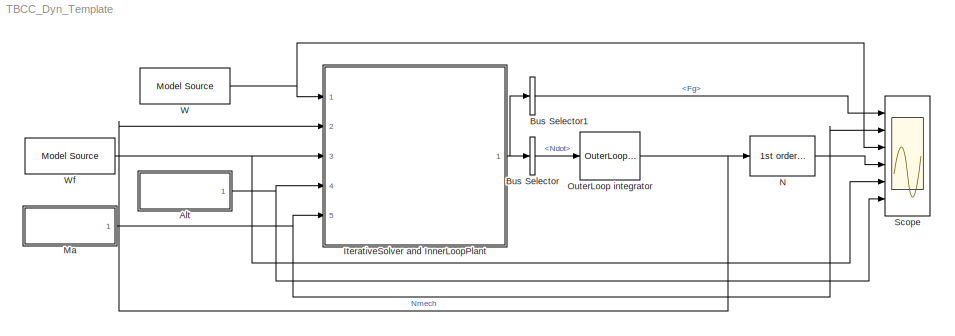
MODEL TBCC_Dyn_Template
KIND model
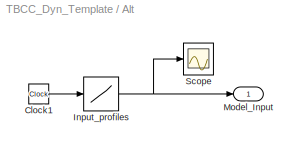
BLOCK [SubSystem] Alt
  AncestorBlock = Lib_Solve_ModelSource_TMATS/Model Source
  Ports = [0, 1]
  RequestExecContextInheritance = off
  SID = 604
BLOCK [Clock] Alt/Clock1
  Decimation = 100
  SID = 604:385
BLOCK [Lookup] Alt/Input_profiles
  InputValues = T_vec_M
  SID = 604:386
  SaturateOnIntegerOverflow = off
  Table = input_array_M
BLOCK [Outport] Alt/Model_Input
  IconDisplay = Port number
  SID = 604:387
BLOCK [Scope] Alt/Scope
  Floating = off
  NumInputPorts = 1
  Ports = [1]
  SID = 604:508
  ScopeSpecificationString = Simulink.scopes.TimeScopeBlockCfg('CurrentConfiguration', extmgr.ConfigurationSet(extmgr.Configuration('Core','General UI',true),extmgr.Configuration('Core','Source UI',true),extmgr.Configuration('Sources','WiredSimulink',true,'DataLoggingVariableName','ScopeData1'),extmgr.Configuration('Visuals','Time Domain',true,'SerializedDisplays',{struct('MinYLimReal','-3.745','MaxYLimReal','33.705','YLabelR...<+1394ch>
BLOCK [BusSelector] Bus Selector
  OutputAsBus = off
  OutputSignals = PlantBus.Ndot
  Ports = [1, 1]
  SID = 531
BLOCK [BusSelector] Bus Selector1
  OutputAsBus = off
  OutputSignals = PlantBus.Fg
  Ports = [1, 1]
  SID = 777
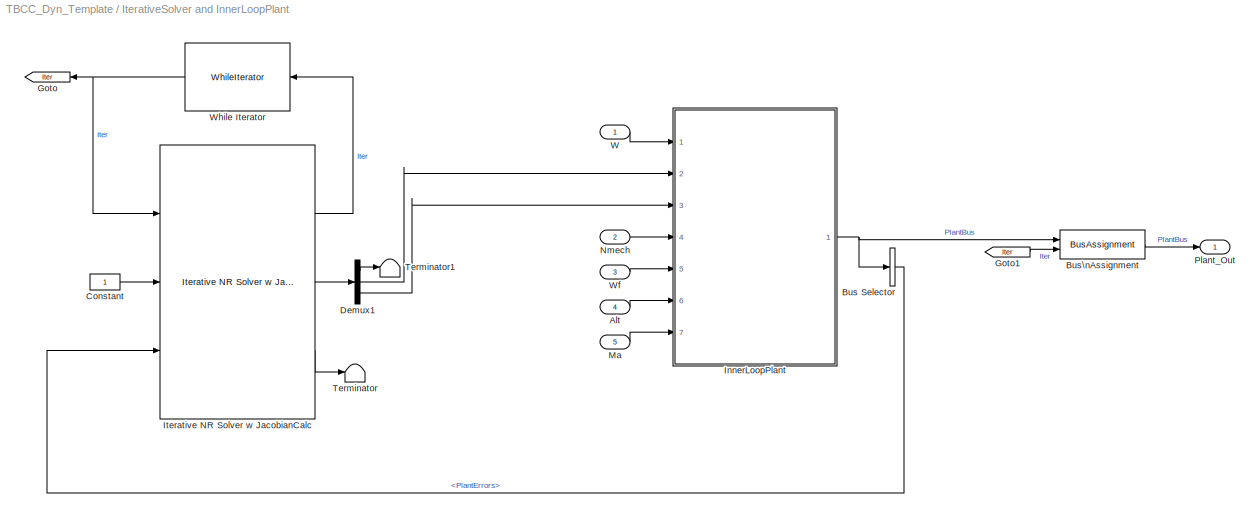
BLOCK [SubSystem] IterativeSolver and InnerLoopPlant
  Ports = [5, 1]
  RequestExecContextInheritance = off
  SID = 416
BLOCK [Inport] IterativeSolver and InnerLoopPlant/Alt
  IconDisplay = Port number
  Port = 4
  SID = 774
BLOCK [BusSelector] IterativeSolver and InnerLoopPlant/Bus Selector
  OutputAsBus = off
  OutputSignals = PlantErrors
  Ports = [1, 1]
  SID = 530
BLOCK [BusAssignment] IterativeSolver and InnerLoopPlant/Bus\nAssignment
  AssignedSignals = PlantBus.Iter
  Ports = [2, 1]
  SID = 751
BLOCK [Constant] IterativeSolver and InnerLoopPlant/Constant
  SID = 626
BLOCK [Demux] IterativeSolver and InnerLoopPlant/Demux1
  DisplayOption = bar
  Outputs = 3
  Ports = [1, 3]
  SID = 770
BLOCK [Goto] IterativeSolver and InnerLoopPlant/Goto
  GotoTag = Iter
  SID = 748
BLOCK [From] IterativeSolver and InnerLoopPlant/Goto1
  GotoTag = Iter
  SID = 750
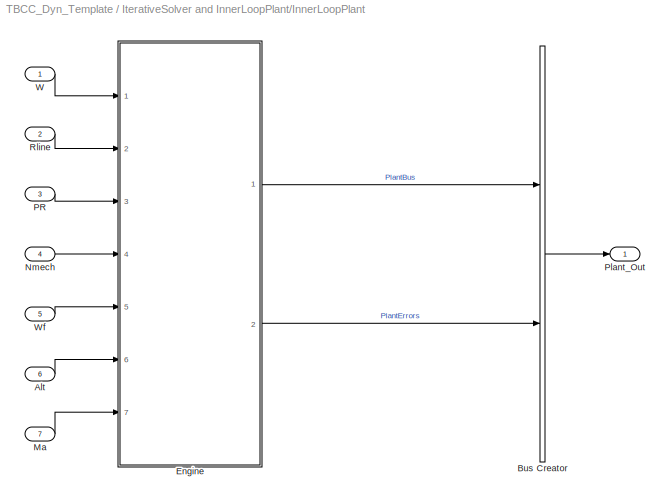
BLOCK [SubSystem] IterativeSolver and InnerLoopPlant/InnerLoopPlant
  Ports = [7, 1]
  RequestExecContextInheritance = off
  SID = 436
BLOCK [Inport] IterativeSolver and InnerLoopPlant/InnerLoopPlant/Alt
  IconDisplay = Port number
  Port = 6
  SID = 767
BLOCK [BusCreator] IterativeSolver and InnerLoopPlant/InnerLoopPlant/Bus Creator
  DisplayOption = bar
  InheritFromInputs = on
  Inputs = 2
  Ports = [2, 1]
  SID = 527
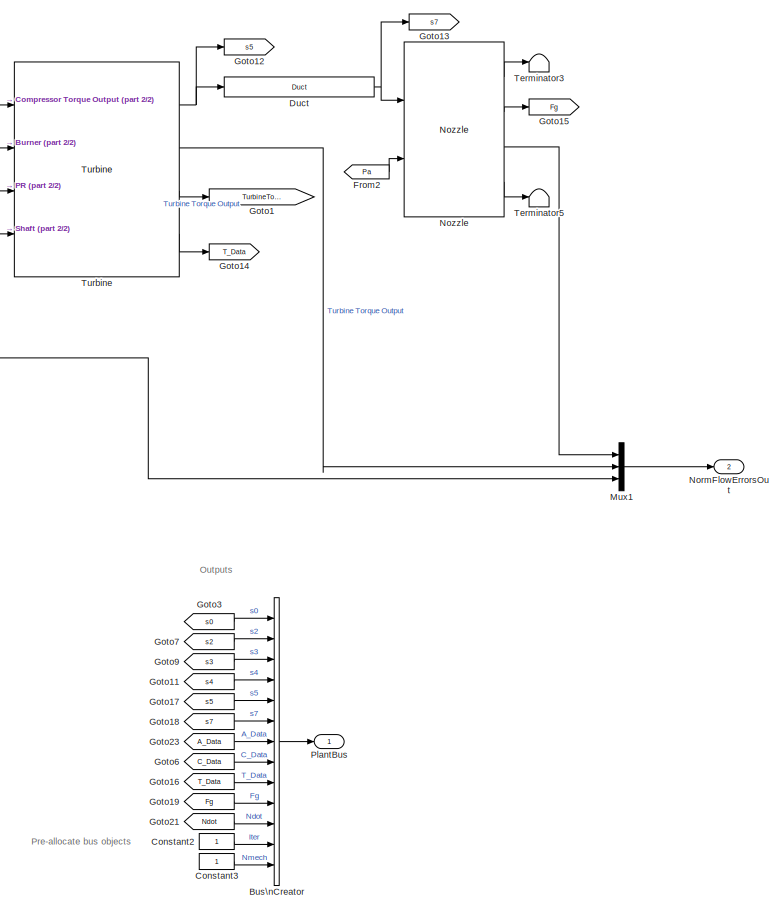
[diagram: IterativeSolver and InnerLoopPlant/InnerLoopPlant/Engine - part 1/2, right side, full height]
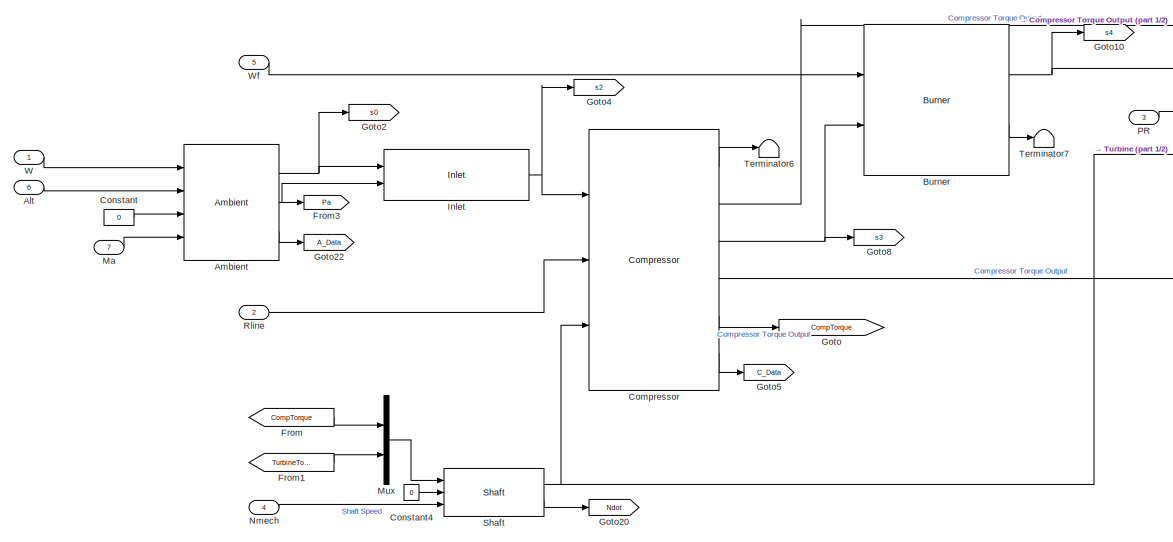
[diagram: IterativeSolver and InnerLoopPlant/InnerLoopPlant/Engine - part 2/2, middle left region]
BLOCK [SubSystem] IterativeSolver and InnerLoopPlant/InnerLoopPlant/Engine
  Ports = [7, 2]
  RequestExecContextInheritance = off
  SID = 629
BLOCK [Inport] IterativeSolver and InnerLoopPlant/InnerLoopPlant/Engine/Alt
  IconDisplay = Port number
  Port = 6
  SID = 635
BLOCK [Reference] IterativeSolver and InnerLoopPlant/InnerLoopPlant/Engine/Ambient  REF=Lib_Turbo_Ambient_TMATS/Ambient
  AFARc_M = 0
  Ports = [4, 3]
  SID = 636
  SourceBlock = Lib_Turbo_Ambient_TMATS/Ambient
  SourceType = T-MATS: Ambient Library Block
  T_A_PsVec_M = [17.554 14.696 12.228 10.108 8.297 6.759 5.461 4.373 3.468 2.73 2.149 1.692 1.049 0.651 0.406]
  T_A_RtArray_M = [0.0686;    0.0686;    0.0686;    0.0686;    0.0686;    0.0686;    0.0686]
  T_A_TsVec_M = [536.51 518.67 500.84 483.03 465.22 447.41 429.62 411.84 394.06 389.97 389.97 389.97 389.97 392.25 397.69]
  T_A_gammaArray_M = [ 1.4 1.4 1.4 1.4 1.4 1.4 1.4; 1.4 1.4 1.4 1.4 1.4 1.4 1.4]
  X_A_AltVec_M = 5000*[-1 0 1 2 3 4 5 6 7 8 9 10 12 14 16]
  X_A_FARVec_M = [0; 0.0050; 0.0100; 0.0150; 0.0200; 0.0250; 0.0300]
  Y_A_TVec_M = [300 10000]
BLOCK [Reference] IterativeSolver and InnerLoopPlant/InnerLoopPlant/Engine/Burner  REF=Lib_Turbo_Burner_TMATS/Burner
  Eff_M = 1
  LHVEn_M = on
  LHV_M = MWS.Burner.LHV
  Ports = [2, 2]
  SID = 637
  SourceBlock = Lib_Turbo_Burner_TMATS/Burner
  SourceType = T-MATS: Burner Library Block
  dPnormBurner_M = MWS.Burner.dP
  hFuel_M = -1200
BLOCK [BusCreator] IterativeSolver and InnerLoopPlant/InnerLoopPlant/Engine/Bus\nCreator
  DisplayOption = bar
  InheritFromInputs = on
  Inputs = 13
  Ports = [13, 1]
  SID = 702
BLOCK [Reference] IterativeSolver and InnerLoopPlant/InnerLoopPlant/Engine/Compressor  REF=Lib_Turbo_Compressor_TMATS/Compressor
  BlkNm_M = double(gcb)
  CBLDEN_M = off
  C_BFPt_M = 0.5
  C_BFht_M = 0.5
  C_CBD_M = 0
  C_CBFPt_M = 0.5
  C_CBFht_M = 0.5
  C_FBD_M = 0
  DefSMEn_M = off
  EffDes_M = 0.85
  FBLDEN_M = off
  FVar_M = strcat('iDes_',stripchar_TMATS(gcb),'.bin')
  HP_M = off
  NcDes_M = 10000
  PRDes_M = 20
  Ports = [3, 6]
  RlineDes_M = 2
  SID = 638
  SL_M = off
  SMNEn_M = off
  SRline_M = 1
  Scale_M = none
  SourceBlock = Lib_Turbo_Compressor_TMATS/Compressor
  SourceType = T-MATS: Compressor Library Block
  T_C_Map_EffArray_M = MWS.HPC.EffArray
  T_C_Map_PRArray_M = MWS.HPC.PRArray
  T_C_Map_PRSurgeVec_M = MWS.HPC.PRMapSurge
  T_C_Map_WcArray_M = MWS.HPC.WcArray
  X_C_Map_WcSurgeVec_M = MWS.HPC.WcMapSurge
  X_C_RlineVec_M = MWS.HPC.RlineVec
  Y_C_Map_NcVec_M = MWS.HPC.NcVec
  Z_C_AlphaVec_M = 1
  iDesign_M = 2
  s_C_Eff_M = MWS.HPC.s_eff
  s_C_Nc_M = MWS.HPC.s_Nc
  s_C_PR_M = MWS.HPC.s_PR
  s_C_Wc_M = MWS.HPC.s_Wc
BLOCK [Constant] IterativeSolver and InnerLoopPlant/InnerLoopPlant/Engine/Constant
  SID = 639
  Value = 0
BLOCK [Constant] IterativeSolver and InnerLoopPlant/InnerLoopPlant/Engine/Constant2
  OutDataTypeStr = int32
  SID = 756
BLOCK [Constant] IterativeSolver and InnerLoopPlant/InnerLoopPlant/Engine/Constant3
  SID = 757
BLOCK [Constant] IterativeSolver and InnerLoopPlant/InnerLoopPlant/Engine/Constant4
  SID = 761
  Value = 0
BLOCK [Reference] IterativeSolver and InnerLoopPlant/InnerLoopPlant/Engine/Duct  REF=Lib_Turbo_Duct_TMATS/Duct
  Ports = [1, 1]
  SID = 641
  SourceBlock = Lib_Turbo_Duct_TMATS/Duct
  SourceType = T-MATS: Duct Library Block
  dP_M = MWS.Duct.dP
BLOCK [From] IterativeSolver and InnerLoopPlant/InnerLoopPlant/Engine/From
  GotoTag = CompTorque
  SID = 642
BLOCK [From] IterativeSolver and InnerLoopPlant/InnerLoopPlant/Engine/From1
  GotoTag = TurbineTorque
  SID = 643
BLOCK [From] IterativeSolver and InnerLoopPlant/InnerLoopPlant/Engine/From2
  GotoTag = Pa
  SID = 644
BLOCK [Goto] IterativeSolver and InnerLoopPlant/InnerLoopPlant/Engine/From3
  GotoTag = Pa
  SID = 645
BLOCK [Goto] IterativeSolver and InnerLoopPlant/InnerLoopPlant/Engine/Goto
  GotoTag = CompTorque
  SID = 646
BLOCK [Goto] IterativeSolver and InnerLoopPlant/InnerLoopPlant/Engine/Goto1
  GotoTag = TurbineTorque
  SID = 647
BLOCK [Goto] IterativeSolver and InnerLoopPlant/InnerLoopPlant/Engine/Goto10
  GotoTag = s4
  SID = 682
BLOCK [From] IterativeSolver and InnerLoopPlant/InnerLoopPlant/Engine/Goto11
  GotoTag = s4
  SID = 696
BLOCK [Goto] IterativeSolver and InnerLoopPlant/InnerLoopPlant/Engine/Goto12
  GotoTag = s5
  SID = 684
BLOCK [Goto] IterativeSolver and InnerLoopPlant/InnerLoopPlant/Engine/Goto13
  GotoTag = s7
  SID = 685
BLOCK [Goto] IterativeSolver and InnerLoopPlant/InnerLoopPlant/Engine/Goto14
  GotoTag = T_Data
  SID = 686
BLOCK [Goto] IterativeSolver and InnerLoopPlant/InnerLoopPlant/Engine/Goto15
  GotoTag = Fg
  SID = 687
BLOCK [From] IterativeSolver and InnerLoopPlant/InnerLoopPlant/Engine/Goto16
  GotoTag = T_Data
  SID = 700
BLOCK [From] IterativeSolver and InnerLoopPlant/InnerLoopPlant/Engine/Goto17
  GotoTag = s5
  SID = 697
BLOCK [From] IterativeSolver and InnerLoopPlant/InnerLoopPlant/Engine/Goto18
  GotoTag = s7
  SID = 698
BLOCK [From] IterativeSolver and InnerLoopPlant/InnerLoopPlant/Engine/Goto19
  GotoTag = Fg
  SID = 701
BLOCK [Goto] IterativeSolver and InnerLoopPlant/InnerLoopPlant/Engine/Goto2
  GotoTag = s0
  SID = 673
BLOCK [Goto] IterativeSolver and InnerLoopPlant/InnerLoopPlant/Engine/Goto20
  GotoTag = Ndot
  SID = 704
BLOCK [From] IterativeSolver and InnerLoopPlant/InnerLoopPlant/Engine/Goto21
  GotoTag = Ndot
  SID = 706
BLOCK [Goto] IterativeSolver and InnerLoopPlant/InnerLoopPlant/Engine/Goto22
  GotoTag = A_Data
  SID = 716
BLOCK [From] IterativeSolver and InnerLoopPlant/InnerLoopPlant/Engine/Goto23
  GotoTag = A_Data
  SID = 718
BLOCK [From] IterativeSolver and InnerLoopPlant/InnerLoopPlant/Engine/Goto3
  GotoTag = s0
  SID = 693
BLOCK [Goto] IterativeSolver and InnerLoopPlant/InnerLoopPlant/Engine/Goto4
  GotoTag = s2
  SID = 676
BLOCK [Goto] IterativeSolver and InnerLoopPlant/InnerLoopPlant/Engine/Goto5
  GotoTag = C_Data
  SID = 677
BLOCK [From] IterativeSolver and InnerLoopPlant/InnerLoopPlant/Engine/Goto6
  GotoTag = C_Data
  SID = 699
BLOCK [From] IterativeSolver and InnerLoopPlant/InnerLoopPlant/Engine/Goto7
  GotoTag = s2
  SID = 694
BLOCK [Goto] IterativeSolver and InnerLoopPlant/InnerLoopPlant/Engine/Goto8
  GotoTag = s3
  SID = 680
BLOCK [From] IterativeSolver and InnerLoopPlant/InnerLoopPlant/Engine/Goto9
  GotoTag = s3
  SID = 695
BLOCK [Reference] IterativeSolver and InnerLoopPlant/InnerLoopPlant/Engine/Inlet  REF=Lib_Turbo_Inlet_TMATS/Inlet
  Ports = [2, 1]
  SID = 648
  SourceBlock = Lib_Turbo_Inlet_TMATS/Inlet
  SourceType = T-MATS: Inlet Library Block
  T_eRamtbl_M = [1 1]
  X_eRamVec_M = [0 3]
  eRambase_M = MWS.Inlet.eRambase
BLOCK [Inport] IterativeSolver and InnerLoopPlant/InnerLoopPlant/Engine/Ma
  IconDisplay = Port number
  Port = 7
  SID = 781
BLOCK [Mux] IterativeSolver and InnerLoopPlant/InnerLoopPlant/Engine/Mux
  DisplayOption = bar
  Inputs = 2
  Ports = [2, 1]
  SID = 649
BLOCK [Mux] IterativeSolver and InnerLoopPlant/InnerLoopPlant/Engine/Mux1
  DisplayOption = bar
  Inputs = 3
  Ports = [3, 1]
  SID = 650
BLOCK [Inport] IterativeSolver and InnerLoopPlant/InnerLoopPlant/Engine/Nmech
  IconDisplay = Port number
  Port = 4
  SID = 633
BLOCK [Outport] IterativeSolver and InnerLoopPlant/InnerLoopPlant/Engine/NormFlowErrorsOut
  IconDisplay = Port number
  Port = 2
  SID = 669
BLOCK [Reference] IterativeSolver and InnerLoopPlant/InnerLoopPlant/Engine/Nozzle  REF=Lib_Turbo_Nozzle_TMATS/Nozzle
  CfgEn_M = off
  FVar_M = strcat('iDes_',stripchar_TMATS(gcb),'.bin')
  N_EArea_M = 110.7
  N_FL_M = MWS.Noz.LossPerc
  N_TArea_M = MWS.Noz.ATh
  Ports = [2, 4]
  SID = 651
  SWType_M = Convergent
  SourceBlock = Lib_Turbo_Nozzle_TMATS/Nozzle
  SourceType = T-MATS: Nozzle Library Block
  T_N_CdThArray_M = MWS.Noz.CdThArray
  T_N_CfgArray_M = [1 1]
  T_N_CvArray_M = MWS.Noz.CvArray
  T_N_MAP_gammaArray_M = MWS.Noz.GArray
  T_N_RtArray_M = MWS.Noz.RArray
  T_N_TGArray_M = MWS.Noz.TGArray
  WDes_M = 100
  X_N_FARVec_M = MWS.Noz.FARVec
  X_N_PEQPaVec_M = MWS.Noz.PeQPaVec
  X_N_TtVec2_M = MWS.Noz.TtVec
  Y_N_TtVec_M = MWS.Noz.TtVec
  iDesign_M = 2
BLOCK [Inport] IterativeSolver and InnerLoopPlant/InnerLoopPlant/Engine/PR
  IconDisplay = Port number
  Port = 3
  SID = 632
BLOCK [Outport] IterativeSolver and InnerLoopPlant/InnerLoopPlant/Engine/PlantBus
  IconDisplay = Port number
  SID = 668
BLOCK [Inport] IterativeSolver and InnerLoopPlant/InnerLoopPlant/Engine/Rline
  IconDisplay = Port number
  Port = 2
  SID = 631
BLOCK [Reference] IterativeSolver and InnerLoopPlant/InnerLoopPlant/Engine/Shaft  REF=Lib_Turbo_Shaft_TMATS/Shaft
  Ports = [3, 2]
  SID = 652
  Shaft_Inertia_M = MWS.Shaft.N_I
  SourceBlock = Lib_Turbo_Shaft_TMATS/Shaft
  SourceType = T-MATS: Shaft Library Block
BLOCK [Terminator] IterativeSolver and InnerLoopPlant/InnerLoopPlant/Engine/Terminator3
  SID = 653
BLOCK [Terminator] IterativeSolver and InnerLoopPlant/InnerLoopPlant/Engine/Terminator5
  SID = 655
BLOCK [Terminator] IterativeSolver and InnerLoopPlant/InnerLoopPlant/Engine/Terminator6
  SID = 656
BLOCK [Terminator] IterativeSolver and InnerLoopPlant/InnerLoopPlant/Engine/Terminator7
  SID = 657
BLOCK [Reference] IterativeSolver and InnerLoopPlant/InnerLoopPlant/Engine/Turbine  REF=Lib_Turbo_Turbine_TMATS/Turbine
  BlkNm_M = double(gcb)
  CFlwEn_M = off
  ConfigNPSS_M = 0
  EffDes_M = 0.9200
  FVar_M = strcat('iDes_',stripchar_TMATS(gcb),'.bin')
  HP_M = off
  NDes_M = 10000
  NcDes_M = 100
  PRDes_M = 5
  Ports = [4, 4]
  SID = 667
  Scale_M = none
  SourceBlock = Lib_Turbo_Turbine_TMATS/Turbine
  SourceType = T-MATS: Turbine Library Block
  T_CoolFlwPos_M = 0
  T_T_Map_EffArray_M = MWS.HPT.EffArray
  T_T_Map_WcArray_M = MWS.HPT.WcArray
  X_T_Map_PRVec_M = MWS.HPT.PRVec
  Y_T_Map_NcVec_M = MWS.HPT.NcVec
  iDesign_M = 2
  s_T_Eff_M = MWS.HPT.s_eff
  s_T_Nc_M = MWS.HPT.s_Nc
  s_T_PR_M = MWS.HPT.s_PR
  s_T_Wc_M = MWS.HPT.s_Wc
BLOCK [Inport] IterativeSolver and InnerLoopPlant/InnerLoopPlant/Engine/W
  IconDisplay = Port number
  SID = 630
BLOCK [Inport] IterativeSolver and InnerLoopPlant/InnerLoopPlant/Engine/Wf
  IconDisplay = Port number
  Port = 5
  SID = 634
BLOCK [Inport] IterativeSolver and InnerLoopPlant/InnerLoopPlant/Ma
  IconDisplay = Port number
  Port = 7
  SID = 782
BLOCK [Inport] IterativeSolver and InnerLoopPlant/InnerLoopPlant/Nmech
  IconDisplay = Port number
  Port = 4
  SID = 765
BLOCK [Inport] IterativeSolver and InnerLoopPlant/InnerLoopPlant/PR
  IconDisplay = Port number
  Port = 3
  SID = 764
BLOCK [Outport] IterativeSolver and InnerLoopPlant/InnerLoopPlant/Plant_Out
  IconDisplay = Port number
  SID = 528
BLOCK [Inport] IterativeSolver and InnerLoopPlant/InnerLoopPlant/Rline
  IconDisplay = Port number
  Port = 2
  SID = 763
BLOCK [Inport] IterativeSolver and InnerLoopPlant/InnerLoopPlant/W
  IconDisplay = Port number
  SID = 762
BLOCK [Inport] IterativeSolver and InnerLoopPlant/InnerLoopPlant/Wf
  IconDisplay = Port number
  Port = 5
  SID = 766
BLOCK [Reference] IterativeSolver and InnerLoopPlant/Iterative NR Solver w JacobianCalc  REF=Lib_Solve_IterNRSolverJC_TMATS/Iterative NR Solver w JacobianCalc
  Cond_Limits_M = MWS.Solve.C_Lim
  Ports = [3, 3]
  SID = 582
  SJac_Per_M = MWS.Solve.J_Calc_Per
  SJacobianAttempts_M = MWS.Solve.NR_Jac_Re
  SNR_DX_M = MWS.Solve.NR_dx
  SNR_IC_M = MWS.Solve.NR_IC
  SNR_Mn_M = 0.0001
  SNR_Mx_M = 100000
  SourceBlock = Lib_Solve_IterNRSolverJC_TMATS/Iterative NR Solver w JacobianCalc
  SourceType = T-MATS: Iterative NR Solver w Jacobian Calc Library Block
BLOCK [Inport] IterativeSolver and InnerLoopPlant/Ma
  IconDisplay = Port number
  Port = 5
  SID = 783
BLOCK [Inport] IterativeSolver and InnerLoopPlant/Nmech
  IconDisplay = Port number
  Port = 2
  SID = 772
BLOCK [Outport] IterativeSolver and InnerLoopPlant/Plant_Out
  IconDisplay = Port number
  SID = 529
BLOCK [Terminator] IterativeSolver and InnerLoopPlant/Terminator
  SID = 625
BLOCK [Terminator] IterativeSolver and InnerLoopPlant/Terminator1
  SID = 771
BLOCK [Inport] IterativeSolver and InnerLoopPlant/W
  IconDisplay = Port number
  SID = 441
BLOCK [Inport] IterativeSolver and InnerLoopPlant/Wf
  IconDisplay = Port number
  Port = 3
  SID = 773
BLOCK [WhileIterator] IterativeSolver and InnerLoopPlant/While Iterator
  MaxIters = MWS.Solve.Max_Iter
  Ports = [1, 1]
  SID = 429
  ShowIterationPort = on
  WhileBlockType = do-while
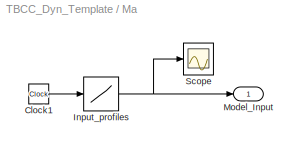
BLOCK [SubSystem] Ma
  AncestorBlock = Lib_Solve_ModelSource_TMATS/Model Source
  Ports = [0, 1]
  RequestExecContextInheritance = off
  SID = 785
BLOCK [Clock] Ma/Clock1
  Decimation = 100
  SID = 785:385
BLOCK [Lookup] Ma/Input_profiles
  InputValues = T_vec_M
  SID = 785:386
  SaturateOnIntegerOverflow = off
  Table = input_array_M
BLOCK [Outport] Ma/Model_Input
  IconDisplay = Port number
  SID = 785:387
BLOCK [Scope] Ma/Scope
  Floating = off
  NumInputPorts = 1
  Ports = [1]
  SID = 785:508
  ScopeSpecificationString = Simulink.scopes.TimeScopeBlockCfg('CurrentConfiguration', extmgr.ConfigurationSet(extmgr.Configuration('Core','General UI',true),extmgr.Configuration('Core','Source UI',true),extmgr.Configuration('Sources','WiredSimulink',true,'DataLoggingVariableName','ScopeData1'),extmgr.Configuration('Visuals','Time Domain',true,'SerializedDisplays',{struct('MinYLimReal','-3.745','MaxYLimReal','33.705','YLabelR...<+1394ch>
BLOCK [Reference] N  REF=Lib_Cntrl_FirstOrderSensor_TMATS/1st order  Sensor
  F_Drift_M = 0
  F_Gain_M = 1
  GN_C_M = 1
  GN_EN_M = off
  GN_MinNoise_M = 0.3
  GN_NST_M = MWS.Solve.T
  Gain_M = 1
  IC_M = MWS.Solve.N_IC
  Ports = [1, 1]
  SID = 786
  Sen_Max_M = 20000
  Sen_Min_M = 0
  SourceBlock = Lib_Cntrl_FirstOrderSensor_TMATS/1st order  Sensor
  SourceType = T-MATS: 1st order sensor Library Block
  Tau_M = 0.05
BLOCK [Reference] OuterLoop integrator  REF=Lib_Solve_OuterLoopIntegrator_TMATS/OuterLoop integrator
  OL_IC_M = MWS.Solve.N_IC
  Ports = [1, 1]
  SID = 581
  SourceBlock = Lib_Solve_OuterLoopIntegrator_TMATS/OuterLoop integrator
  SourceType = T-MATS: OuterLoop Integrator Library Block
BLOCK [Scope] Scope
  Floating = off
  NumInputPorts = 6
  Ports = [6]
  SID = 776
  ScopeSpecificationString = Simulink.scopes.TimeScopeBlockCfg('CurrentConfiguration', extmgr.ConfigurationSet(extmgr.Configuration('Core','General UI',true),extmgr.Configuration('Core','Source UI',true),extmgr.Configuration('Sources','WiredSimulink',true),extmgr.Configuration('Visuals','Time Domain',true,'SerializedDisplays',{struct('MinYLimReal','9537.82309','MaxYLimReal','9918.257','YLabelReal','','MinYLimMag','9537.82309'...<+4751ch>
BLOCK [Reference] W  REF=Lib_Solve_ModelSource_TMATS/Model Source
  Ports = [0, 1]
  SID = 775
  SourceBlock = Lib_Solve_ModelSource_TMATS/Model Source
  SourceType = T-MATS: Model Source Library Block
  T_vec_M = MWS.in.t_vec
  input_array_M = MWS.in.Alt
BLOCK [Reference] Wf  REF=Lib_Solve_ModelSource_TMATS/Model Source
  Ports = [0, 1]
  SID = 602
  SourceBlock = Lib_Solve_ModelSource_TMATS/Model Source
  SourceType = T-MATS: Model Source Library Block
  T_vec_M = MWS.in.t_vec
  input_array_M = MWS.in.Wf
ANNOTATION IterativeSolver and InnerLoopPlant/InnerLoopPlant/Engine: \n \n Outputs
ANNOTATION IterativeSolver and InnerLoopPlant/InnerLoopPlant/Engine: Pre-allocate bus objects
LINE Alt/Clock1:1 -> Alt/Input_profiles:1
NET Alt/Input_profiles:1 -> Alt/Model_Input:1, Alt/Scope:1
NET Alt:1 -> IterativeSolver and InnerLoopPlant:4, Scope:6
LINE Bus Selector1:1 -> Scope:1
LINE Bus Selector:1 -> OuterLoop integrator:1
LINE IterativeSolver and InnerLoopPlant/Alt:1 -> IterativeSolver and InnerLoopPlant/InnerLoopPlant:6
LINE IterativeSolver and InnerLoopPlant/Bus Selector:1 -> IterativeSolver and InnerLoopPlant/Iterative NR Solver w JacobianCalc:3
LINE IterativeSolver and InnerLoopPlant/Bus\nAssignment:1 -> IterativeSolver and InnerLoopPlant/Plant_Out:1
LINE IterativeSolver and InnerLoopPlant/Constant:1 -> IterativeSolver and InnerLoopPlant/Iterative NR Solver w JacobianCalc:2
LINE IterativeSolver and InnerLoopPlant/Demux1:1 -> IterativeSolver and InnerLoopPlant/Terminator1:1
LINE IterativeSolver and InnerLoopPlant/Demux1:2 -> IterativeSolver and InnerLoopPlant/InnerLoopPlant:2
LINE IterativeSolver and InnerLoopPlant/Demux1:3 -> IterativeSolver and InnerLoopPlant/InnerLoopPlant:3
LINE IterativeSolver and InnerLoopPlant/Goto1:1 -> IterativeSolver and InnerLoopPlant/Bus\nAssignment:2
LINE IterativeSolver and InnerLoopPlant/InnerLoopPlant/Alt:1 -> IterativeSolver and InnerLoopPlant/InnerLoopPlant/Engine:6
LINE IterativeSolver and InnerLoopPlant/InnerLoopPlant/Bus Creator:1 -> IterativeSolver and InnerLoopPlant/InnerLoopPlant/Plant_Out:1
LINE IterativeSolver and InnerLoopPlant/InnerLoopPlant/Engine/Alt:1 -> IterativeSolver and InnerLoopPlant/InnerLoopPlant/Engine/Ambient:2
NET IterativeSolver and InnerLoopPlant/InnerLoopPlant/Engine/Ambient:1 -> IterativeSolver and InnerLoopPlant/InnerLoopPlant/Engine/Goto2:1, IterativeSolver and InnerLoopPlant/InnerLoopPlant/Engine/Inlet:1
NET IterativeSolver and InnerLoopPlant/InnerLoopPlant/Engine/Ambient:2 -> IterativeSolver and InnerLoopPlant/InnerLoopPlant/Engine/From3:1, IterativeSolver and InnerLoopPlant/InnerLoopPlant/Engine/Inlet:2
LINE IterativeSolver and InnerLoopPlant/InnerLoopPlant/Engine/Ambient:3 -> IterativeSolver and InnerLoopPlant/InnerLoopPlant/Engine/Goto22:1
NET IterativeSolver and InnerLoopPlant/InnerLoopPlant/Engine/Burner:1 -> IterativeSolver and InnerLoopPlant/InnerLoopPlant/Engine/Goto10:1, IterativeSolver and InnerLoopPlant/InnerLoopPlant/Engine/Turbine:2
LINE IterativeSolver and InnerLoopPlant/InnerLoopPlant/Engine/Burner:2 -> IterativeSolver and InnerLoopPlant/InnerLoopPlant/Engine/Terminator7:1
LINE IterativeSolver and InnerLoopPlant/InnerLoopPlant/Engine/Bus\nCreator:1 -> IterativeSolver and InnerLoopPlant/InnerLoopPlant/Engine/PlantBus:1
LINE IterativeSolver and InnerLoopPlant/InnerLoopPlant/Engine/Compressor:1 -> IterativeSolver and InnerLoopPlant/InnerLoopPlant/Engine/Terminator6:1
LINE IterativeSolver and InnerLoopPlant/InnerLoopPlant/Engine/Compressor:2 -> IterativeSolver and InnerLoopPlant/InnerLoopPlant/Engine/Turbine:1
NET IterativeSolver and InnerLoopPlant/InnerLoopPlant/Engine/Compressor:3 -> IterativeSolver and InnerLoopPlant/InnerLoopPlant/Engine/Burner:2, IterativeSolver and InnerLoopPlant/InnerLoopPlant/Engine/Goto8:1
LINE IterativeSolver and InnerLoopPlant/InnerLoopPlant/Engine/Compressor:4 -> IterativeSolver and InnerLoopPlant/InnerLoopPlant/Engine/Mux1:3
LINE IterativeSolver and InnerLoopPlant/InnerLoopPlant/Engine/Compressor:5 -> IterativeSolver and InnerLoopPlant/InnerLoopPlant/Engine/Goto:1
LINE IterativeSolver and InnerLoopPlant/InnerLoopPlant/Engine/Compressor:6 -> IterativeSolver and InnerLoopPlant/InnerLoopPlant/Engine/Goto5:1
LINE IterativeSolver and InnerLoopPlant/InnerLoopPlant/Engine/Constant2:1 -> IterativeSolver and InnerLoopPlant/InnerLoopPlant/Engine/Bus\nCreator:12
LINE IterativeSolver and InnerLoopPlant/InnerLoopPlant/Engine/Constant3:1 -> IterativeSolver and InnerLoopPlant/InnerLoopPlant/Engine/Bus\nCreator:13
LINE IterativeSolver and InnerLoopPlant/InnerLoopPlant/Engine/Constant4:1 -> IterativeSolver and InnerLoopPlant/InnerLoopPlant/Engine/Shaft:2
LINE IterativeSolver and InnerLoopPlant/InnerLoopPlant/Engine/Constant:1 -> IterativeSolver and InnerLoopPlant/InnerLoopPlant/Engine/Ambient:3
NET IterativeSolver and InnerLoopPlant/InnerLoopPlant/Engine/Duct:1 -> IterativeSolver and InnerLoopPlant/InnerLoopPlant/Engine/Goto13:1, IterativeSolver and InnerLoopPlant/InnerLoopPlant/Engine/Nozzle:1
LINE IterativeSolver and InnerLoopPlant/InnerLoopPlant/Engine/From1:1 -> IterativeSolver and InnerLoopPlant/InnerLoopPlant/Engine/Mux:2
LINE IterativeSolver and InnerLoopPlant/InnerLoopPlant/Engine/From2:1 -> IterativeSolver and InnerLoopPlant/InnerLoopPlant/Engine/Nozzle:2
LINE IterativeSolver and InnerLoopPlant/InnerLoopPlant/Engine/From:1 -> IterativeSolver and InnerLoopPlant/InnerLoopPlant/Engine/Mux:1
LINE IterativeSolver and InnerLoopPlant/InnerLoopPlant/Engine/Goto11:1 -> IterativeSolver and InnerLoopPlant/InnerLoopPlant/Engine/Bus\nCreator:4
LINE IterativeSolver and InnerLoopPlant/InnerLoopPlant/Engine/Goto16:1 -> IterativeSolver and InnerLoopPlant/InnerLoopPlant/Engine/Bus\nCreator:9
LINE IterativeSolver and InnerLoopPlant/InnerLoopPlant/Engine/Goto17:1 -> IterativeSolver and InnerLoopPlant/InnerLoopPlant/Engine/Bus\nCreator:5
LINE IterativeSolver and InnerLoopPlant/InnerLoopPlant/Engine/Goto18:1 -> IterativeSolver and InnerLoopPlant/InnerLoopPlant/Engine/Bus\nCreator:6
LINE IterativeSolver and InnerLoopPlant/InnerLoopPlant/Engine/Goto19:1 -> IterativeSolver and InnerLoopPlant/InnerLoopPlant/Engine/Bus\nCreator:10
LINE IterativeSolver and InnerLoopPlant/InnerLoopPlant/Engine/Goto21:1 -> IterativeSolver and InnerLoopPlant/InnerLoopPlant/Engine/Bus\nCreator:11
LINE IterativeSolver and InnerLoopPlant/InnerLoopPlant/Engine/Goto23:1 -> IterativeSolver and InnerLoopPlant/InnerLoopPlant/Engine/Bus\nCreator:7
LINE IterativeSolver and InnerLoopPlant/InnerLoopPlant/Engine/Goto3:1 -> IterativeSolver and InnerLoopPlant/InnerLoopPlant/Engine/Bus\nCreator:1
LINE IterativeSolver and InnerLoopPlant/InnerLoopPlant/Engine/Goto6:1 -> IterativeSolver and InnerLoopPlant/InnerLoopPlant/Engine/Bus\nCreator:8
LINE IterativeSolver and InnerLoopPlant/InnerLoopPlant/Engine/Goto7:1 -> IterativeSolver and InnerLoopPlant/InnerLoopPlant/Engine/Bus\nCreator:2
LINE IterativeSolver and InnerLoopPlant/InnerLoopPlant/Engine/Goto9:1 -> IterativeSolver and InnerLoopPlant/InnerLoopPlant/Engine/Bus\nCreator:3
NET IterativeSolver and InnerLoopPlant/InnerLoopPlant/Engine/Inlet:1 -> IterativeSolver and InnerLoopPlant/InnerLoopPlant/Engine/Compressor:1, IterativeSolver and InnerLoopPlant/InnerLoopPlant/Engine/Goto4:1
LINE IterativeSolver and InnerLoopPlant/InnerLoopPlant/Engine/Ma:1 -> IterativeSolver and InnerLoopPlant/InnerLoopPlant/Engine/Ambient:4
LINE IterativeSolver and InnerLoopPlant/InnerLoopPlant/Engine/Mux1:1 -> IterativeSolver and InnerLoopPlant/InnerLoopPlant/Engine/NormFlowErrorsOut:1
LINE IterativeSolver and InnerLoopPlant/InnerLoopPlant/Engine/Mux:1 -> IterativeSolver and InnerLoopPlant/InnerLoopPlant/Engine/Shaft:1
LINE IterativeSolver and InnerLoopPlant/InnerLoopPlant/Engine/Nmech:1 -> IterativeSolver and InnerLoopPlant/InnerLoopPlant/Engine/Shaft:3
LINE IterativeSolver and InnerLoopPlant/InnerLoopPlant/Engine/Nozzle:1 -> IterativeSolver and InnerLoopPlant/InnerLoopPlant/Engine/Terminator3:1
LINE IterativeSolver and InnerLoopPlant/InnerLoopPlant/Engine/Nozzle:2 -> IterativeSolver and InnerLoopPlant/InnerLoopPlant/Engine/Goto15:1
LINE IterativeSolver and InnerLoopPlant/InnerLoopPlant/Engine/Nozzle:3 -> IterativeSolver and InnerLoopPlant/InnerLoopPlant/Engine/Mux1:1
LINE IterativeSolver and InnerLoopPlant/InnerLoopPlant/Engine/Nozzle:4 -> IterativeSolver and InnerLoopPlant/InnerLoopPlant/Engine/Terminator5:1
LINE IterativeSolver and InnerLoopPlant/InnerLoopPlant/Engine/PR:1 -> IterativeSolver and InnerLoopPlant/InnerLoopPlant/Engine/Turbine:3
LINE IterativeSolver and InnerLoopPlant/InnerLoopPlant/Engine/Rline:1 -> IterativeSolver and InnerLoopPlant/InnerLoopPlant/Engine/Compressor:2
NET IterativeSolver and InnerLoopPlant/InnerLoopPlant/Engine/Shaft:1 -> IterativeSolver and InnerLoopPlant/InnerLoopPlant/Engine/Compressor:3, IterativeSolver and InnerLoopPlant/InnerLoopPlant/Engine/Turbine:4
LINE IterativeSolver and InnerLoopPlant/InnerLoopPlant/Engine/Shaft:2 -> IterativeSolver and InnerLoopPlant/InnerLoopPlant/Engine/Goto20:1
NET IterativeSolver and InnerLoopPlant/InnerLoopPlant/Engine/Turbine:1 -> IterativeSolver and InnerLoopPlant/InnerLoopPlant/Engine/Duct:1, IterativeSolver and InnerLoopPlant/InnerLoopPlant/Engine/Goto12:1
LINE IterativeSolver and InnerLoopPlant/InnerLoopPlant/Engine/Turbine:2 -> IterativeSolver and InnerLoopPlant/InnerLoopPlant/Engine/Mux1:2
LINE IterativeSolver and InnerLoopPlant/InnerLoopPlant/Engine/Turbine:3 -> IterativeSolver and InnerLoopPlant/InnerLoopPlant/Engine/Goto1:1
LINE IterativeSolver and InnerLoopPlant/InnerLoopPlant/Engine/Turbine:4 -> IterativeSolver and InnerLoopPlant/InnerLoopPlant/Engine/Goto14:1
LINE IterativeSolver and InnerLoopPlant/InnerLoopPlant/Engine/W:1 -> IterativeSolver and InnerLoopPlant/InnerLoopPlant/Engine/Ambient:1
LINE IterativeSolver and InnerLoopPlant/InnerLoopPlant/Engine/Wf:1 -> IterativeSolver and InnerLoopPlant/InnerLoopPlant/Engine/Burner:1
LINE IterativeSolver and InnerLoopPlant/InnerLoopPlant/Engine:1 -> IterativeSolver and InnerLoopPlant/InnerLoopPlant/Bus Creator:1
LINE IterativeSolver and InnerLoopPlant/InnerLoopPlant/Engine:2 -> IterativeSolver and InnerLoopPlant/InnerLoopPlant/Bus Creator:2
LINE IterativeSolver and InnerLoopPlant/InnerLoopPlant/Ma:1 -> IterativeSolver and InnerLoopPlant/InnerLoopPlant/Engine:7
LINE IterativeSolver and InnerLoopPlant/InnerLoopPlant/Nmech:1 -> IterativeSolver and InnerLoopPlant/InnerLoopPlant/Engine:4
LINE IterativeSolver and InnerLoopPlant/InnerLoopPlant/PR:1 -> IterativeSolver and InnerLoopPlant/InnerLoopPlant/Engine:3
LINE IterativeSolver and InnerLoopPlant/InnerLoopPlant/Rline:1 -> IterativeSolver and InnerLoopPlant/InnerLoopPlant/Engine:2
LINE IterativeSolver and InnerLoopPlant/InnerLoopPlant/W:1 -> IterativeSolver and InnerLoopPlant/InnerLoopPlant/Engine:1
LINE IterativeSolver and InnerLoopPlant/InnerLoopPlant/Wf:1 -> IterativeSolver and InnerLoopPlant/InnerLoopPlant/Engine:5
NET IterativeSolver and InnerLoopPlant/InnerLoopPlant:1 -> IterativeSolver and InnerLoopPlant/Bus Selector:1, IterativeSolver and InnerLoopPlant/Bus\nAssignment:1
LINE IterativeSolver and InnerLoopPlant/Iterative NR Solver w JacobianCalc:1 -> IterativeSolver and InnerLoopPlant/While Iterator:1
LINE IterativeSolver and InnerLoopPlant/Iterative NR Solver w JacobianCalc:2 -> IterativeSolver and InnerLoopPlant/Demux1:1
LINE IterativeSolver and InnerLoopPlant/Iterative NR Solver w JacobianCalc:3 -> IterativeSolver and InnerLoopPlant/Terminator:1
LINE IterativeSolver and InnerLoopPlant/Ma:1 -> IterativeSolver and InnerLoopPlant/InnerLoopPlant:7
LINE IterativeSolver and InnerLoopPlant/Nmech:1 -> IterativeSolver and InnerLoopPlant/InnerLoopPlant:4
LINE IterativeSolver and InnerLoopPlant/W:1 -> IterativeSolver and InnerLoopPlant/InnerLoopPlant:1
LINE IterativeSolver and InnerLoopPlant/Wf:1 -> IterativeSolver and InnerLoopPlant/InnerLoopPlant:5
NET IterativeSolver and InnerLoopPlant/While Iterator:1 -> IterativeSolver and InnerLoopPlant/Goto:1, IterativeSolver and InnerLoopPlant/Iterative NR Solver w JacobianCalc:1
NET IterativeSolver and InnerLoopPlant:1 -> Bus Selector1:1, Bus Selector:1
LINE Ma/Clock1:1 -> Ma/Input_profiles:1
NET Ma/Input_profiles:1 -> Ma/Model_Input:1, Ma/Scope:1
NET Ma:1 -> IterativeSolver and InnerLoopPlant:5, Scope:2
LINE N:1 -> Scope:4
NET OuterLoop integrator:1 -> IterativeSolver and InnerLoopPlant:2, N:1
NET W:1 -> IterativeSolver and InnerLoopPlant:1, Scope:3
NET Wf:1 -> IterativeSolver and InnerLoopPlant:3, Scope:5
note: NET lines group one-source signal fan-out (src -> all destinations, sorted); 1:1 wires keep LINE
